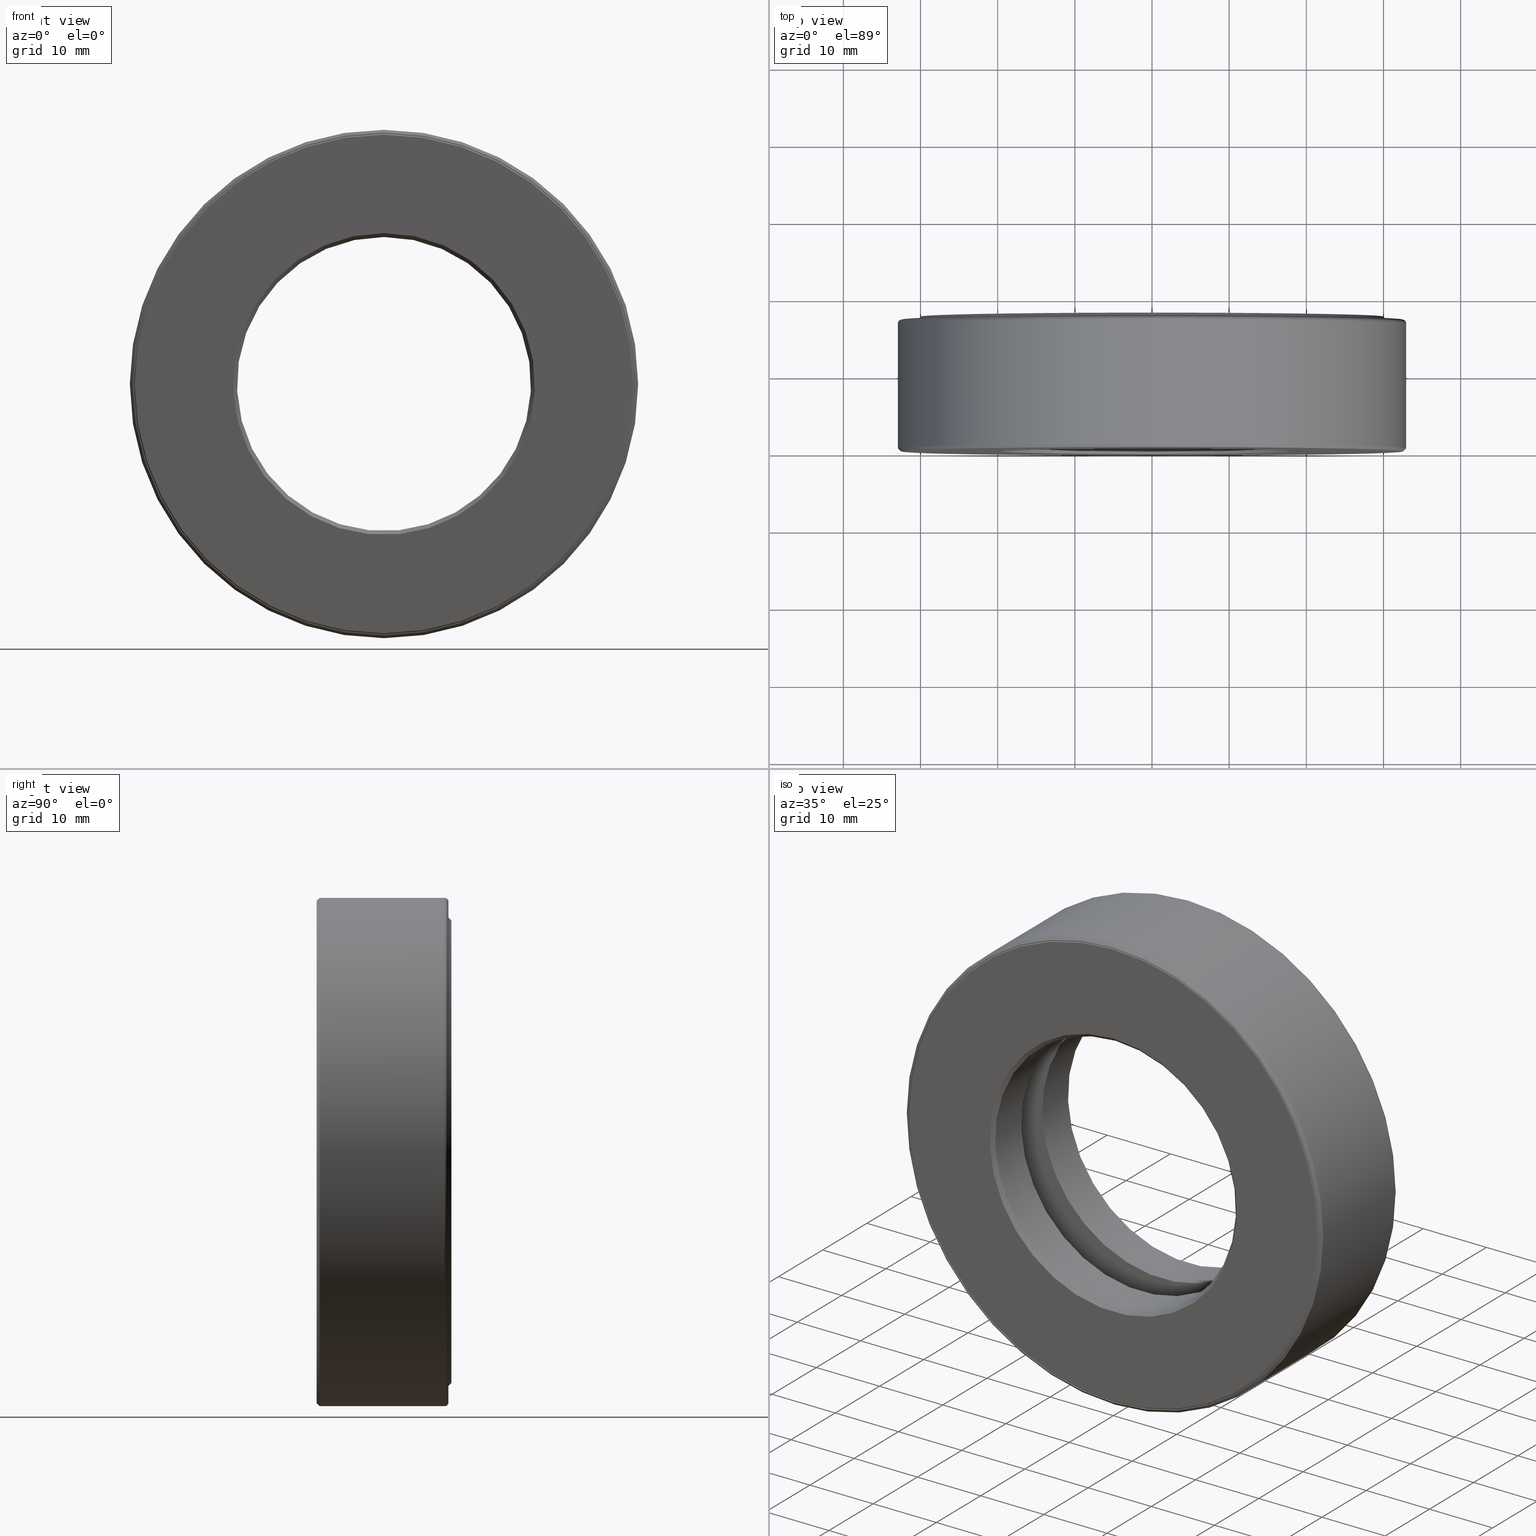
[diagram: canonical four-view strip — front | top / right | iso, engineering-drawing reading convention]
A machine part, canonical four-view strip (front | top / right | iso — engineering-drawing reading convention). The complete STEP part file that produces these views, byte-faithful:
ISO-10303-21;
HEADER;
FILE_DESCRIPTION (( 'STEP AP203' ),
    '1' );
FILE_NAME ('T-100-21.step',
    '2016-06-29T18:27:24',
    ( '' ),
    ( '' ),
    'SwSTEP 2.0',
    'SolidWorks 2016',
    '' );
FILE_SCHEMA (( 'CONFIG_CONTROL_DESIGN' ));
ENDSEC;

DATA;
#1 = DIRECTION ( 'NONE',  ( 0.0000000000000000000, 0.0000000000000000000, 1.000000000000000000 ) ) ;
#2 = EDGE_LOOP ( 'NONE', ( #406 ) ) ;
#3 = PERSON_AND_ORGANIZATION ( #119, #268 ) ;
#4 = CARTESIAN_POINT ( 'NONE',  ( 0.0000000000000000000, 0.6724999999999998800, 0.0000000000000000000 ) ) ;
#5 = PERSON_AND_ORGANIZATION_ROLE ( 'design_owner' ) ;
#6 = DIRECTION ( 'NONE',  ( -0.0000000000000000000, 1.000000000000000000, -0.0000000000000000000 ) ) ;
#7 = ORIENTED_EDGE ( 'NONE', *, *, #381, .T. ) ;
#8 = EDGE_CURVE ( 'NONE', #547, #547, #39, .T. ) ;
#9 = EDGE_LOOP ( 'NONE', ( #101 ) ) ;
#10 = CALENDAR_DATE ( 2016, 29, 6 ) ;
#11 = DIRECTION ( 'NONE',  ( 0.0000000000000000000, -1.000000000000000000, 0.0000000000000000000 ) ) ;
#12 = PERSON_AND_ORGANIZATION_ROLE ( 'classification_officer' ) ;
#13 = MANIFOLD_SOLID_BREP ( 'Revolve3', #201 ) ;
#14 = DIRECTION ( 'NONE',  ( 0.0000000000000000000, 0.0000000000000000000, 1.000000000000000000 ) ) ;
#15 = ORIENTED_EDGE ( 'NONE', *, *, #381, .F. ) ;
#16 = EDGE_LOOP ( 'NONE', ( #591 ) ) ;
#17 = VERTEX_POINT ( 'NONE', #168 ) ;
#18 = DIRECTION ( 'NONE',  ( -0.0000000000000000000, 1.000000000000000000, -0.0000000000000000000 ) ) ;
#19 = CIRCLE ( 'NONE', #76, 1.216875000000000200 ) ;
#20 = CIRCLE ( 'NONE', #64, 1.276875000000000000 ) ;
#21 = APPROVAL ( #465, 'UNSPECIFIED' ) ;
#22 = PLANE ( 'NONE',  #510 ) ;
#23 = DIMENSIONAL_EXPONENTS ( 1.000000000000000000, 0.0000000000000000000, 0.0000000000000000000, 0.0000000000000000000, 0.0000000000000000000, 0.0000000000000000000, 0.0000000000000000000 ) ;
#24 = CLOSED_SHELL ( 'NONE', ( #295 ) ) ;
#25 = CARTESIAN_POINT ( 'NONE',  ( 0.0000000000000000000, 0.3437500000000000000, 0.0000000000000000000 ) ) ;
#26 = APPROVAL_PERSON_ORGANIZATION ( #441, #21, #379 ) ;
#27 = AXIS2_PLACEMENT_3D ( 'NONE', #599, #43, #224 ) ;
#28 = DIRECTION ( 'NONE',  ( -0.0000000000000000000, 1.000000000000000000, -0.0000000000000000000 ) ) ;
#29 = EDGE_LOOP ( 'NONE', ( #550 ) ) ;
#30 = FACE_BOUND ( 'NONE', #2, .T. ) ;
#31 = PERSON_AND_ORGANIZATION ( #119, #268 ) ;
#32 = CARTESIAN_POINT ( 'NONE',  ( 0.0000000000000000000, 0.4375000000000000000, 0.0000000000000000000 ) ) ;
#33 = ADVANCED_FACE ( 'NONE', ( #548, #148 ), #218, .F. ) ;
#34 = AXIS2_PLACEMENT_3D ( 'NONE', #277, #230, #469 ) ;
#35 = ADVANCED_FACE ( 'NONE', ( #520, #241 ), #341, .F. ) ;
#36 = MANIFOLD_SOLID_BREP ( 'BALLS[1]', #292 ) ;
#37 = ORIENTED_EDGE ( 'NONE', *, *, #423, .T. ) ;
#38 = VERTEX_POINT ( 'NONE', #463 ) ;
#39 = CIRCLE ( 'NONE', #539, 0.7500000000000002200 ) ;
#40 = CARTESIAN_POINT ( 'NONE',  ( 0.0000000000000000000, -6.936332796413168700E-017, 0.0000000000000000000 ) ) ;
#41 = PERSON_AND_ORGANIZATION ( #119, #268 ) ;
#42 = AXIS2_PLACEMENT_3D ( 'NONE', #236, #6, #14 ) ;
#43 = DIRECTION ( 'NONE',  ( 0.0000000000000000000, -1.000000000000000000, 0.0000000000000000000 ) ) ;
#44 = FACE_OUTER_BOUND ( 'NONE', #359, .T. ) ;
#45 = FACE_BOUND ( 'NONE', #373, .T. ) ;
#46 = AXIS2_PLACEMENT_3D ( 'NONE', #560, #282, #103 ) ;
#47 = CARTESIAN_POINT ( 'NONE',  ( 0.0000000000000000000, 0.2499999999999998300, 0.0000000000000000000 ) ) ;
#48 = DIRECTION ( 'NONE',  ( 0.0000000000000000000, 0.0000000000000000000, 1.000000000000000000 ) ) ;
#49 = CARTESIAN_POINT ( 'NONE',  ( 0.0000000000000000000, 0.2499999999999999700, 0.0000000000000000000 ) ) ;
#50 = EDGE_LOOP ( 'NONE', ( #146 ) ) ;
#51 = VERTEX_POINT ( 'NONE', #90 ) ;
#52 = EDGE_LOOP ( 'NONE', ( #408 ) ) ;
#53 = PLANE ( 'NONE',  #567 ) ;
#54 = CC_DESIGN_APPROVAL ( #21, ( #590 ) ) ;
#55 = CARTESIAN_POINT ( 'NONE',  ( 0.0000000000000000000, 0.4375000000000000000, 0.0000000000000000000 ) ) ;
#56 =( NAMED_UNIT ( * ) PLANE_ANGLE_UNIT ( ) SI_UNIT ( $, .RADIAN. ) );
#57 = DIRECTION ( 'NONE',  ( -1.000000000000000000, 0.0000000000000000000, 6.982962677686269100E-015 ) ) ;
#58 = DATE_TIME_ROLE ( 'classification_date' ) ;
#59 = AXIS2_PLACEMENT_3D ( 'NONE', #504, #365, #220 ) ;
#60 = ORIENTED_EDGE ( 'NONE', *, *, #549, .T. ) ;
#61 = DIRECTION ( 'NONE',  ( -0.0000000000000000000, 1.000000000000000000, -0.0000000000000000000 ) ) ;
#62 = DIRECTION ( 'NONE',  ( 0.0000000000000000000, 0.0000000000000000000, 1.000000000000000000 ) ) ;
#63 =( NAMED_UNIT ( * ) SI_UNIT ( $, .STERADIAN. ) SOLID_ANGLE_UNIT ( ) );
#64 = AXIS2_PLACEMENT_3D ( 'NONE', #578, #545, #209 ) ;
#65 = EDGE_LOOP ( 'NONE', ( #594 ) ) ;
#66 = CC_DESIGN_PERSON_AND_ORGANIZATION_ASSIGNMENT ( #141, #289, ( #544 ) ) ;
#67 = FACE_OUTER_BOUND ( 'NONE', #596, .T. ) ;
#68 = VERTEX_POINT ( 'NONE', #278 ) ;
#69 = ADVANCED_FACE ( 'NONE', ( #592, #327 ), #269, .F. ) ;
#70 = ORIENTED_EDGE ( 'NONE', *, *, #8, .F. ) ;
#71 = DIRECTION ( 'NONE',  ( 0.0000000000000000000, 0.0000000000000000000, -1.000000000000000000 ) ) ;
#72 = EDGE_LOOP ( 'NONE', ( #440 ) ) ;
#73 = APPROVAL ( #569, 'UNSPECIFIED' ) ;
#74 = CARTESIAN_POINT ( 'NONE',  ( 0.0000000000000000000, 0.0000000000000000000, 0.0000000000000000000 ) ) ;
#75 = ADVANCED_FACE ( 'NONE', ( #360, #461 ), #140, .F. ) ;
#76 = AXIS2_PLACEMENT_3D ( 'NONE', #4, #97, #145 ) ;
#77 = DIRECTION ( 'NONE',  ( -0.0000000000000000000, 1.000000000000000000, -0.0000000000000000000 ) ) ;
#78 = ADVANCED_FACE ( 'NONE', ( #165, #217 ), #323, .T. ) ;
#79 = EDGE_LOOP ( 'NONE', ( #7 ) ) ;
#80 = CIRCLE ( 'NONE', #488, 0.7500000000000001100 ) ;
#81 = ORIENTED_EDGE ( 'NONE', *, *, #357, .T. ) ;
#82 = LENGTH_MEASURE_WITH_UNIT ( LENGTH_MEASURE( 0.02539999999999999900 ), #332 );
#83 = DATE_AND_TIME ( #507, #584 ) ;
#84 = DIRECTION ( 'NONE',  ( -0.0000000000000000000, 1.000000000000000000, -0.0000000000000000000 ) ) ;
#85 = CARTESIAN_POINT ( 'NONE',  ( 0.0000000000000000000, 0.02000000000000046900, 0.0000000000000000000 ) ) ;
#86 = CIRCLE ( 'NONE', #42, 0.7700000000000003500 ) ;
#87 = AXIS2_PLACEMENT_3D ( 'NONE', #270, #89, #417 ) ;
#88 = CARTESIAN_POINT ( 'NONE',  ( 0.0000000000000000000, 0.6524999999999997500, 1.296875000000000000 ) ) ;
#89 = DIRECTION ( 'NONE',  ( 1.000000000000000000, 0.0000000000000000000, -1.047444401652940600E-014 ) ) ;
#90 = CARTESIAN_POINT ( 'NONE',  ( 0.0000000000000000000, 0.6724999999999998800, 1.276875000000000000 ) ) ;
#91 = AXIS2_PLACEMENT_3D ( 'NONE', #580, #122, #402 ) ;
#92 = DIRECTION ( 'NONE',  ( 0.0000000000000000000, 0.0000000000000000000, 1.000000000000000000 ) ) ;
#93 = CLOSED_SHELL ( 'NONE', ( #309, #532, #78, #345, #167, #123, #495, #302 ) ) ;
#94 = FACE_BOUND ( 'NONE', #369, .T. ) ;
#95 = PLANE ( 'NONE',  #34 ) ;
#96 = CC_DESIGN_DATE_AND_TIME_ASSIGNMENT ( #565, #155, ( #544 ) ) ;
#97 = DIRECTION ( 'NONE',  ( -0.0000000000000000000, 1.000000000000000000, -0.0000000000000000000 ) ) ;
#98 = EDGE_CURVE ( 'NONE', #519, #519, #534, .T. ) ;
#99 = CARTESIAN_POINT ( 'NONE',  ( 0.0000000000000000000, 0.0000000000000000000, 0.0000000000000000000 ) ) ;
#100 = DIRECTION ( 'NONE',  ( 0.0000000000000000000, 0.0000000000000000000, 1.000000000000000000 ) ) ;
#101 = ORIENTED_EDGE ( 'NONE', *, *, #357, .F. ) ;
#102 = CIRCLE ( 'NONE', #91, 0.9866250000000003100 ) ;
#103 = DIRECTION ( 'NONE',  ( 0.0000000000000000000, 0.0000000000000000000, 1.000000000000000000 ) ) ;
#104 = APPROVAL ( #335, 'UNSPECIFIED' ) ;
#105 = ORIENTED_EDGE ( 'NONE', *, *, #235, .F. ) ;
#106 = CARTESIAN_POINT ( 'NONE',  ( 0.0000000000000000000, 0.6524999999999997500, 0.0000000000000000000 ) ) ;
#107 = EDGE_LOOP ( 'NONE', ( #553 ) ) ;
#108 = CARTESIAN_POINT ( 'NONE',  ( 3.881217943291499200E-015, 0.3437500000000000000, 1.111625000000000100 ) ) ;
#109 = MECHANICAL_CONTEXT ( 'NONE', #237, 'mechanical' ) ;
#110 = AXIS2_PLACEMENT_3D ( 'NONE', #40, #554, #92 ) ;
#111 = CIRCLE ( 'NONE', #150, 1.181875000000000000 ) ;
#112 = DIRECTION ( 'NONE',  ( -1.000000000000000000, 0.0000000000000000000, 3.491481338843134500E-015 ) ) ;
#113 = FACE_OUTER_BOUND ( 'NONE', #275, .T. ) ;
#114 = VERTEX_POINT ( 'NONE', #380 ) ;
#115 = DIRECTION ( 'NONE',  ( 0.0000000000000000000, 0.0000000000000000000, 1.000000000000000000 ) ) ;
#116 = CARTESIAN_POINT ( 'NONE',  ( 0.0000000000000000000, 0.01499999999999984000, 1.296875000000000000 ) ) ;
#117 = EDGE_LOOP ( 'NONE', ( #387 ) ) ;
#118 = CC_DESIGN_PERSON_AND_ORGANIZATION_ASSIGNMENT ( #3, #435, ( #590 ) ) ;
#119 = PERSON ( 'UNSPECIFIED', 'UNSPECIFIED', 'UNSPECIFIED', ('UNSPECIFIED'), ('UNSPECIFIED'), ('UNSPECIFIED') ) ;
#120 = CIRCLE ( 'NONE', #331, 0.7500000000000002200 ) ;
#121 = FACE_OUTER_BOUND ( 'NONE', #377, .T. ) ;
#122 = DIRECTION ( 'NONE',  ( -0.0000000000000000000, 1.000000000000000000, -0.0000000000000000000 ) ) ;
#123 = ADVANCED_FACE ( 'NONE', ( #559, #94 ), #320, .T. ) ;
#124 = CLOSED_SHELL ( 'NONE', ( #212, #306, #171, #583, #298, #577, #491, #586, #546, #69, #445, #211, #405, #75, #35, #33 ) ) ;
#125 = EDGE_LOOP ( 'NONE', ( #505 ) ) ;
#126 = PLANE ( 'NONE',  #409 ) ;
#127 = CARTESIAN_POINT ( 'NONE',  ( 0.0000000000000000000, 0.004999999999999950700, 1.276875000000000000 ) ) ;
#128 = CIRCLE ( 'NONE', #233, 1.269875000000000100 ) ;
#129 = CIRCLE ( 'NONE', #305, 0.9866250000000003100 ) ;
#130 = CC_DESIGN_SECURITY_CLASSIFICATION ( #333, ( #590 ) ) ;
#131 = DATE_AND_TIME ( #576, #170 ) ;
#132 = EDGE_LOOP ( 'NONE', ( #389 ) ) ;
#133 = FACE_OUTER_BOUND ( 'NONE', #266, .T. ) ;
#134 = CYLINDRICAL_SURFACE ( 'NONE', #481, 1.276875000000000000 ) ;
#135 = AXIS2_PLACEMENT_3D ( 'NONE', #257, #312, #322 ) ;
#136 = CARTESIAN_POINT ( 'NONE',  ( 0.0000000000000000000, 0.0000000000000000000, 0.0000000000000000000 ) ) ;
#137 = CC_DESIGN_APPROVAL ( #104, ( #333 ) ) ;
#138 = DIRECTION ( 'NONE',  ( -0.0000000000000000000, 1.000000000000000000, 0.0000000000000000000 ) ) ;
#139 = ORIENTED_EDGE ( 'NONE', *, *, #219, .F. ) ;
#140 = CONICAL_SURFACE ( 'NONE', #418, 0.7500000000000001100, 0.7853981633974415100 ) ;
#141 = PERSON_AND_ORGANIZATION ( #119, #268 ) ;
#142 = AXIS2_PLACEMENT_3D ( 'NONE', #193, #151, #271 ) ;
#143 = VERTEX_POINT ( 'NONE', #127 ) ;
#144 = COORDINATED_UNIVERSAL_TIME_OFFSET ( 5, 0, .BEHIND. ) ;
#145 = DIRECTION ( 'NONE',  ( 0.0000000000000000000, 0.0000000000000000000, 1.000000000000000000 ) ) ;
#146 = ORIENTED_EDGE ( 'NONE', *, *, #391, .T. ) ;
#147 = VERTEX_POINT ( 'NONE', #485 ) ;
#148 = FACE_OUTER_BOUND ( 'NONE', #425, .T. ) ;
#149 = DIRECTION ( 'NONE',  ( 6.982962677686269100E-015, -0.0000000000000000000, 1.000000000000000000 ) ) ;
#150 = AXIS2_PLACEMENT_3D ( 'NONE', #339, #242, #342 ) ;
#151 = DIRECTION ( 'NONE',  ( 0.0000000000000000000, 0.0000000000000000000, -1.000000000000000000 ) ) ;
#152 = SECURITY_CLASSIFICATION_LEVEL ( 'unclassified' ) ;
#153 = EDGE_LOOP ( 'NONE', ( #350 ) ) ;
#154 = DIRECTION ( 'NONE',  ( 0.0000000000000000000, -0.0000000000000000000, -1.000000000000000000 ) ) ;
#155 = DATE_TIME_ROLE ( 'creation_date' ) ;
#156 = CARTESIAN_POINT ( 'NONE',  ( 0.0000000000000000000, 0.5995000000000001400, 0.0000000000000000000 ) ) ;
#157 = ORIENTED_EDGE ( 'NONE', *, *, #506, .F. ) ;
#158 = DIRECTION ( 'NONE',  ( 0.0000000000000000000, 0.0000000000000000000, 1.000000000000000000 ) ) ;
#159 = DIRECTION ( 'NONE',  ( -0.0000000000000000000, 1.000000000000000000, -0.0000000000000000000 ) ) ;
#160 = ORIENTED_EDGE ( 'NONE', *, *, #192, .T. ) ;
#161 = DIRECTION ( 'NONE',  ( 0.0000000000000000000, 0.0000000000000000000, 1.000000000000000000 ) ) ;
#162 = PRODUCT_RELATED_PRODUCT_CATEGORY ( 'detail', '', ( #229 ) ) ;
#163 = ORIENTED_EDGE ( 'NONE', *, *, #192, .F. ) ;
#164 = PLANE ( 'NONE',  #444 ) ;
#165 = FACE_BOUND ( 'NONE', #223, .T. ) ;
#166 = FACE_BOUND ( 'NONE', #117, .T. ) ;
#167 = ADVANCED_FACE ( 'NONE', ( #294, #486 ), #393, .F. ) ;
#168 = CARTESIAN_POINT ( 'NONE',  ( 0.0000000000000000000, 0.6524999999999997500, 1.276875000000000000 ) ) ;
#169 = AXIS2_PLACEMENT_3D ( 'NONE', #324, #138, #454 ) ;
#170 = LOCAL_TIME ( 14, 27, 24.00000000000000000, #516 ) ;
#171 = ADVANCED_FACE ( 'NONE', ( #502, #203 ), #134, .F. ) ;
#172 = DIRECTION ( 'NONE',  ( -0.0000000000000000000, 1.000000000000000000, -0.0000000000000000000 ) ) ;
#173 = AXIS2_PLACEMENT_3D ( 'NONE', #330, #195, #1 ) ;
#174 = TOROIDAL_SURFACE ( 'NONE', #343, 1.111625000000000100, 0.1562499999999999200 ) ;
#175 = ADVANCED_FACE ( 'NONE', ( ), #260, .T. ) ;
#176 = FACE_OUTER_BOUND ( 'NONE', #153, .T. ) ;
#177 = CARTESIAN_POINT ( 'NONE',  ( 0.0000000000000000000, 0.6674999999999995400, 0.7500000000000002200 ) ) ;
#178 = CARTESIAN_POINT ( 'NONE',  ( 0.0000000000000000000, 0.6524999999999997500, 0.0000000000000000000 ) ) ;
#179 = ORIENTED_EDGE ( 'NONE', *, *, #555, .T. ) ;
#180 = ORIENTED_EDGE ( 'NONE', *, *, #317, .T. ) ;
#181 = CARTESIAN_POINT ( 'NONE',  ( 0.0000000000000000000, -7.043045608665678100E-017, 1.281875000000000100 ) ) ;
#182 = AXIS2_PLACEMENT_3D ( 'NONE', #106, #61, #478 ) ;
#183 = EDGE_LOOP ( 'NONE', ( #244 ) ) ;
#184 = AXIS2_PLACEMENT_3D ( 'NONE', #47, #371, #413 ) ;
#185 = FACE_BOUND ( 'NONE', #363, .T. ) ;
#186 = CARTESIAN_POINT ( 'NONE',  ( 0.0000000000000000000, -6.936332796413168700E-017, 1.271874999999999900 ) ) ;
#187 = CC_DESIGN_PERSON_AND_ORGANIZATION_ASSIGNMENT ( #31, #5, ( #229 ) ) ;
#188 = EDGE_LOOP ( 'NONE', ( #364 ) ) ;
#189 = CYLINDRICAL_SURFACE ( 'NONE', #321, 1.269875000000000100 ) ;
#190 = CARTESIAN_POINT ( 'NONE',  ( 0.0000000000000000000, 0.5995000000000001400, 1.269874999999999900 ) ) ;
#191 = APPROVAL_PERSON_ORGANIZATION ( #41, #104, #523 ) ;
#192 = EDGE_CURVE ( 'NONE', #558, #558, #573, .T. ) ;
#193 = CARTESIAN_POINT ( 'NONE',  ( -1.111625000000000100, 0.3437500000000000000, 0.0000000000000000000 ) ) ;
#194 = EDGE_LOOP ( 'NONE', ( #518 ) ) ;
#195 = DIRECTION ( 'NONE',  ( -0.0000000000000000000, 1.000000000000000000, -0.0000000000000000000 ) ) ;
#196 = APPROVAL_PERSON_ORGANIZATION ( #328, #73, #427 ) ;
#197 = AXIS2_PLACEMENT_3D ( 'NONE', #200, #18, #398 ) ;
#198 = DIRECTION ( 'NONE',  ( 0.0000000000000000000, 0.0000000000000000000, 1.000000000000000000 ) ) ;
#199 = CARTESIAN_POINT ( 'NONE',  ( 0.0000000000000000000, 0.0000000000000000000, 0.0000000000000000000 ) ) ;
#200 = CARTESIAN_POINT ( 'NONE',  ( 0.0000000000000000000, 0.6524999999999997500, 0.0000000000000000000 ) ) ;
#201 = CLOSED_SHELL ( 'NONE', ( #248 ) ) ;
#202 = VERTEX_POINT ( 'NONE', #394 ) ;
#203 = FACE_OUTER_BOUND ( 'NONE', #336, .T. ) ;
#204 = LOCAL_TIME ( 14, 27, 24.00000000000000000, #304 ) ;
#205 = DIRECTION ( 'NONE',  ( -0.0000000000000000000, 1.000000000000000000, -0.0000000000000000000 ) ) ;
#206 = AXIS2_PLACEMENT_3D ( 'NONE', #299, #28, #442 ) ;
#207 = ORIENTED_EDGE ( 'NONE', *, *, #457, .F. ) ;
#208 = CONICAL_SURFACE ( 'NONE', #397, 1.181875000000000000, 0.7853981633974482800 ) ;
#209 = DIRECTION ( 'NONE',  ( 0.0000000000000000000, 0.0000000000000000000, 1.000000000000000000 ) ) ;
#210 = EDGE_CURVE ( 'NONE', #420, #420, #129, .T. ) ;
#211 = ADVANCED_FACE ( 'NONE', ( #449, #30 ), #438, .T. ) ;
#212 = ADVANCED_FACE ( 'NONE', ( #347, #401 ), #232, .F. ) ;
#213 = DIRECTION ( 'NONE',  ( 0.0000000000000000000, 0.0000000000000000000, 1.000000000000000000 ) ) ;
#214 = CC_DESIGN_APPROVAL ( #73, ( #544 ) ) ;
#215 = EDGE_LOOP ( 'NONE', ( #157 ) ) ;
#216 = FACE_OUTER_BOUND ( 'NONE', #509, .T. ) ;
#217 = FACE_OUTER_BOUND ( 'NONE', #29, .T. ) ;
#218 = PLANE ( 'NONE',  #135 ) ;
#219 = EDGE_CURVE ( 'NONE', #448, #448, #511, .T. ) ;
#220 = DIRECTION ( 'NONE',  ( 0.0000000000000000000, 0.0000000000000000000, 1.000000000000000000 ) ) ;
#221 = CLOSED_SHELL ( 'NONE', ( #175 ) ) ;
#222 = CARTESIAN_POINT ( 'NONE',  ( 0.0000000000000000000, 0.6875000000000000000, 0.0000000000000000000 ) ) ;
#223 = EDGE_LOOP ( 'NONE', ( #515 ) ) ;
#224 = DIRECTION ( 'NONE',  ( 0.0000000000000000000, -0.0000000000000000000, -1.000000000000000000 ) ) ;
#225 = APPROVAL_DATE_TIME ( #497, #104 ) ;
#226 = DIRECTION ( 'NONE',  ( -0.0000000000000000000, 1.000000000000000000, -0.0000000000000000000 ) ) ;
#227 = FACE_OUTER_BOUND ( 'NONE', #238, .T. ) ;
#228 = APPROVAL_DATE_TIME ( #450, #73 ) ;
#229 = PRODUCT ( 'T-100-21', 'T-100-21', '', ( #109 ) ) ;
#230 = DIRECTION ( 'NONE',  ( 0.0000000000000000000, -1.000000000000000000, 0.0000000000000000000 ) ) ;
#231 = APPLICATION_PROTOCOL_DEFINITION ( 'international standard', 'config_control_design', 1994, #566 ) ;
#232 = TOROIDAL_SURFACE ( 'NONE', #479, 1.111625000000000100, 0.1562500000000000000 ) ;
#233 = AXIS2_PLACEMENT_3D ( 'NONE', #568, #434, #572 ) ;
#234 = CARTESIAN_POINT ( 'NONE',  ( 0.0000000000000000000, 0.4375000000000000000, 0.0000000000000000000 ) ) ;
#235 = EDGE_CURVE ( 'NONE', #460, #460, #19, .T. ) ;
#236 = CARTESIAN_POINT ( 'NONE',  ( 0.0000000000000000000, 0.6875000000000000000, 0.0000000000000000000 ) ) ;
#237 = APPLICATION_CONTEXT ( 'configuration controlled 3d designs of mechanical parts and assemblies' ) ;
#238 = EDGE_LOOP ( 'NONE', ( #399 ) ) ;
#239 = FACE_OUTER_BOUND ( 'NONE', #496, .T. ) ;
#240 = DIRECTION ( 'NONE',  ( -0.0000000000000000000, 1.000000000000000000, 0.0000000000000000000 ) ) ;
#241 = FACE_OUTER_BOUND ( 'NONE', #419, .T. ) ;
#242 = DIRECTION ( 'NONE',  ( -0.0000000000000000000, 1.000000000000000000, -0.0000000000000000000 ) ) ;
#243 = DIRECTION ( 'NONE',  ( 0.0000000000000000000, 0.0000000000000000000, 1.000000000000000000 ) ) ;
#244 = ORIENTED_EDGE ( 'NONE', *, *, #219, .T. ) ;
#245 = FACE_BOUND ( 'NONE', #183, .T. ) ;
#246 = FACE_OUTER_BOUND ( 'NONE', #9, .T. ) ;
#247 = DIRECTION ( 'NONE',  ( -0.0000000000000000000, 1.000000000000000000, -0.0000000000000000000 ) ) ;
#248 = ADVANCED_FACE ( 'NONE', ( ), #493, .T. ) ;
#249 = DIRECTION ( 'NONE',  ( -0.0000000000000000000, 1.000000000000000000, -0.0000000000000000000 ) ) ;
#250 = CARTESIAN_POINT ( 'NONE',  ( 0.0000000000000000000, 0.4375000000000000000, 0.9866250000000003100 ) ) ;
#251 = AXIS2_PLACEMENT_3D ( 'NONE', #536, #159, #337 ) ;
#252 = CARTESIAN_POINT ( 'NONE',  ( 0.0000000000000000000, 0.2499999999999998300, 1.236625000000000100 ) ) ;
#253 = EDGE_LOOP ( 'NONE', ( #263 ) ) ;
#254 = CIRCLE ( 'NONE', #300, 1.276875000000000000 ) ;
#255 = DIRECTION ( 'NONE',  ( 0.0000000000000000000, 0.0000000000000000000, 1.000000000000000000 ) ) ;
#256 = APPROVAL_DATE_TIME ( #83, #21 ) ;
#257 = CARTESIAN_POINT ( 'NONE',  ( -7.215657669477718100E-017, 0.2499999999999999200, 0.0000000000000000000 ) ) ;
#258 = EDGE_LOOP ( 'NONE', ( #163 ) ) ;
#259 = VERTEX_POINT ( 'NONE', #538 ) ;
#260 = SPHERICAL_SURFACE ( 'NONE', #87, 0.1562500000000000000 ) ;
#261 = CIRCLE ( 'NONE', #352, 1.271874999999999900 ) ;
#262 = CC_DESIGN_PERSON_AND_ORGANIZATION_ASSIGNMENT ( #456, #474, ( #590 ) ) ;
#263 = ORIENTED_EDGE ( 'NONE', *, *, #549, .F. ) ;
#264 = CARTESIAN_POINT ( 'NONE',  ( 0.0000000000000000000, 0.6674999999999995400, 0.0000000000000000000 ) ) ;
#265 = EDGE_CURVE ( 'NONE', #326, #326, #313, .T. ) ;
#266 = EDGE_LOOP ( 'NONE', ( #483 ) ) ;
#267 = CIRCLE ( 'NONE', #173, 1.296875000000000000 ) ;
#268 = ORGANIZATION ( 'UNSPECIFIED', 'UNSPECIFIED', '' ) ;
#269 = PLANE ( 'NONE',  #169 ) ;
#270 = CARTESIAN_POINT ( 'NONE',  ( -1.164365382987449700E-014, 0.3437500000000000000, -1.111625000000000100 ) ) ;
#271 = DIRECTION ( 'NONE',  ( 1.000000000000000000, 0.0000000000000000000, 0.0000000000000000000 ) ) ;
#272 = EDGE_LOOP ( 'NONE', ( #139 ) ) ;
#273 = AXIS2_PLACEMENT_3D ( 'NONE', #529, #205, #115 ) ;
#274 = VERTEX_POINT ( 'NONE', #186 ) ;
#275 = EDGE_LOOP ( 'NONE', ( #70 ) ) ;
#276 = CIRCLE ( 'NONE', #273, 1.276875000000000000 ) ;
#277 = CARTESIAN_POINT ( 'NONE',  ( 0.0000000000000000000, 0.2499999999999998300, 0.0000000000000000000 ) ) ;
#278 = CARTESIAN_POINT ( 'NONE',  ( 0.0000000000000000000, 0.2499999999999998300, 1.276875000000000000 ) ) ;
#279 = EDGE_CURVE ( 'NONE', #202, #202, #120, .T. ) ;
#280 = LOCAL_TIME ( 14, 27, 24.00000000000000000, #602 ) ;
#281 = CARTESIAN_POINT ( 'NONE',  ( 0.0000000000000000000, 0.6524999999999997500, 0.0000000000000000000 ) ) ;
#282 = DIRECTION ( 'NONE',  ( -0.0000000000000000000, 1.000000000000000000, -0.0000000000000000000 ) ) ;
#283 = EDGE_LOOP ( 'NONE', ( #570 ) ) ;
#284 = CIRCLE ( 'NONE', #206, 1.276875000000000000 ) ;
#285 = AXIS2_PLACEMENT_3D ( 'NONE', #464, #372, #374 ) ;
#286 = FACE_OUTER_BOUND ( 'NONE', #392, .T. ) ;
#287 = DIRECTION ( 'NONE',  ( -0.0000000000000000000, 1.000000000000000000, -0.0000000000000000000 ) ) ;
#288 = CARTESIAN_POINT ( 'NONE',  ( -1.470819718715328300E-032, -3.468166398206584400E-017, 0.0000000000000000000 ) ) ;
#289 = PERSON_AND_ORGANIZATION_ROLE ( 'creator' ) ;
#290 = UNCERTAINTY_MEASURE_WITH_UNIT (LENGTH_MEASURE( 1.000000000000000100E-005 ), #338, 'distance_accuracy_value', 'NONE');
#291 = DIRECTION ( 'NONE',  ( 0.0000000000000000000, 0.0000000000000000000, 1.000000000000000000 ) ) ;
#292 = CLOSED_SHELL ( 'NONE', ( #403 ) ) ;
#293 = VERTEX_POINT ( 'NONE', #116 ) ;
#294 = FACE_OUTER_BOUND ( 'NONE', #50, .T. ) ;
#295 = ADVANCED_FACE ( 'NONE', ( ), #476, .T. ) ;
#296 = CARTESIAN_POINT ( 'NONE',  ( 0.0000000000000000000, 0.6875000000000000000, 0.0000000000000000000 ) ) ;
#297 = EDGE_LOOP ( 'NONE', ( #179 ) ) ;
#298 = ADVANCED_FACE ( 'NONE', ( #355, #67 ), #605, .F. ) ;
#299 = CARTESIAN_POINT ( 'NONE',  ( 0.0000000000000000000, 0.2499999999999998300, 0.0000000000000000000 ) ) ;
#300 = AXIS2_PLACEMENT_3D ( 'NONE', #281, #437, #161 ) ;
#301 = CARTESIAN_POINT ( 'NONE',  ( 0.0000000000000000000, 0.4375000000000000000, 0.7500000000000002200 ) ) ;
#302 = ADVANCED_FACE ( 'NONE', ( #286, #176 ), #189, .T. ) ;
#303 = FACE_OUTER_BOUND ( 'NONE', #603, .T. ) ;
#304 = COORDINATED_UNIVERSAL_TIME_OFFSET ( 5, 0, .BEHIND. ) ;
#305 = AXIS2_PLACEMENT_3D ( 'NONE', #458, #226, #551 ) ;
#306 = ADVANCED_FACE ( 'NONE', ( #466, #527 ), #95, .F. ) ;
#307 = DIRECTION ( 'NONE',  ( 0.0000000000000000000, 0.0000000000000000000, 1.000000000000000000 ) ) ;
#308 = CARTESIAN_POINT ( 'NONE',  ( 0.0000000000000000000, 0.4375000000000000000, 1.236625000000000100 ) ) ;
#309 = ADVANCED_FACE ( 'NONE', ( #45, #246 ), #53, .T. ) ;
#310 = ORIENTED_EDGE ( 'NONE', *, *, #423, .F. ) ;
#311 = CYLINDRICAL_SURFACE ( 'NONE', #598, 1.296875000000000000 ) ;
#312 = DIRECTION ( 'NONE',  ( 0.0000000000000000000, -1.000000000000000000, 0.0000000000000000000 ) ) ;
#313 = CIRCLE ( 'NONE', #521, 1.236625000000000100 ) ;
#314 = VERTEX_POINT ( 'NONE', #472 ) ;
#315 = MANIFOLD_SOLID_BREP ( 'Revolve2[2]', #93 ) ;
#316 = AXIS2_PLACEMENT_3D ( 'NONE', #199, #432, #158 ) ;
#317 = EDGE_CURVE ( 'NONE', #293, #293, #267, .T. ) ;
#318 = DIRECTION ( 'NONE',  ( 0.0000000000000000000, 0.0000000000000000000, 1.000000000000000000 ) ) ;
#319 = CIRCLE ( 'NONE', #439, 1.281875000000000100 ) ;
#320 = PLANE ( 'NONE',  #400 ) ;
#321 = AXIS2_PLACEMENT_3D ( 'NONE', #426, #422, #517 ) ;
#322 = DIRECTION ( 'NONE',  ( 0.0000000000000000000, -0.0000000000000000000, -1.000000000000000000 ) ) ;
#323 = PLANE ( 'NONE',  #27 ) ;
#324 = CARTESIAN_POINT ( 'NONE',  ( -1.538755723098135700E-032, -7.007939281880947700E-017, 0.0000000000000000000 ) ) ;
#325 = EDGE_LOOP ( 'NONE', ( #207 ) ) ;
#326 = VERTEX_POINT ( 'NONE', #308 ) ;
#327 = FACE_BOUND ( 'NONE', #107, .T. ) ;
#328 = PERSON_AND_ORGANIZATION ( #119, #268 ) ;
#329 = DIRECTION ( 'NONE',  ( 0.0000000000000000000, 0.0000000000000000000, 1.000000000000000000 ) ) ;
#330 = CARTESIAN_POINT ( 'NONE',  ( 0.0000000000000000000, 0.01499999999999984000, 0.0000000000000000000 ) ) ;
#331 = AXIS2_PLACEMENT_3D ( 'NONE', #49, #383, #562 ) ;
#332 =( LENGTH_UNIT ( ) NAMED_UNIT ( * ) SI_UNIT ( $, .METRE. ) );
#333 = SECURITY_CLASSIFICATION ( '', '', #152 ) ;
#334 = ORIENTED_EDGE ( 'NONE', *, *, #265, .T. ) ;
#335 = APPROVAL_STATUS ( 'not_yet_approved' ) ;
#336 = EDGE_LOOP ( 'NONE', ( #582 ) ) ;
#337 = DIRECTION ( 'NONE',  ( 0.0000000000000000000, 0.0000000000000000000, 1.000000000000000000 ) ) ;
#338 =( CONVERSION_BASED_UNIT ( 'INCH', #82 ) LENGTH_UNIT ( ) NAMED_UNIT ( #23 ) );
#339 = CARTESIAN_POINT ( 'NONE',  ( 0.0000000000000000000, 0.6875000000000000000, 0.0000000000000000000 ) ) ;
#340 = FACE_OUTER_BOUND ( 'NONE', #600, .T. ) ;
#341 = CYLINDRICAL_SURFACE ( 'NONE', #564, 0.7500000000000002200 ) ;
#342 = DIRECTION ( 'NONE',  ( 0.0000000000000000000, 0.0000000000000000000, 1.000000000000000000 ) ) ;
#343 = AXIS2_PLACEMENT_3D ( 'NONE', #25, #585, #307 ) ;
#344 = DIRECTION ( 'NONE',  ( 0.0000000000000000000, 0.0000000000000000000, 1.000000000000000000 ) ) ;
#345 = ADVANCED_FACE ( 'NONE', ( #227, #113 ), #421, .F. ) ;
#346 = CARTESIAN_POINT ( 'NONE',  ( 0.0000000000000000000, 0.6724999999999998800, 0.0000000000000000000 ) ) ;
#347 = FACE_OUTER_BOUND ( 'NONE', #215, .T. ) ;
#348 = TOROIDAL_SURFACE ( 'NONE', #197, 1.276875000000000000, 0.02000000000000005900 ) ;
#349 = DIRECTION ( 'NONE',  ( 0.0000000000000000000, 0.0000000000000000000, 1.000000000000000000 ) ) ;
#350 = ORIENTED_EDGE ( 'NONE', *, *, #451, .F. ) ;
#351 = ORIENTED_EDGE ( 'NONE', *, *, #279, .T. ) ;
#352 = AXIS2_PLACEMENT_3D ( 'NONE', #473, #574, #198 ) ;
#353 = DIRECTION ( 'NONE',  ( 0.0000000000000000000, 0.0000000000000000000, 1.000000000000000000 ) ) ;
#354 = CIRCLE ( 'NONE', #251, 1.276875000000000000 ) ;
#355 = FACE_OUTER_BOUND ( 'NONE', #272, .T. ) ;
#356 = EDGE_CURVE ( 'NONE', #17, #17, #254, .T. ) ;
#357 = EDGE_CURVE ( 'NONE', #259, #259, #128, .T. ) ;
#358 = CARTESIAN_POINT ( 'NONE',  ( 0.0000000000000000000, 0.6875000000000000000, 1.181875000000000000 ) ) ;
#359 = EDGE_LOOP ( 'NONE', ( #396 ) ) ;
#360 = FACE_OUTER_BOUND ( 'NONE', #65, .T. ) ;
#361 = CIRCLE ( 'NONE', #385, 1.269874999999999900 ) ;
#362 = CC_DESIGN_PERSON_AND_ORGANIZATION_ASSIGNMENT ( #471, #12, ( #333 ) ) ;
#363 = EDGE_LOOP ( 'NONE', ( #15 ) ) ;
#364 = ORIENTED_EDGE ( 'NONE', *, *, #279, .F. ) ;
#365 = DIRECTION ( 'NONE',  ( -0.0000000000000000000, 1.000000000000000000, -0.0000000000000000000 ) ) ;
#366 = EDGE_CURVE ( 'NONE', #147, #147, #354, .T. ) ;
#367 = DIRECTION ( 'NONE',  ( -0.0000000000000000000, 1.000000000000000000, 0.0000000000000000000 ) ) ;
#368 = ADVANCED_BREP_SHAPE_REPRESENTATION ( 'T-100-21', ( #404, #315, #13, #36, #513, #482, #581 ), #462 ) ;
#369 = EDGE_LOOP ( 'NONE', ( #492 ) ) ;
#370 = ORIENTED_EDGE ( 'NONE', *, *, #366, .F. ) ;
#371 = DIRECTION ( 'NONE',  ( -0.0000000000000000000, 1.000000000000000000, -0.0000000000000000000 ) ) ;
#372 = DIRECTION ( 'NONE',  ( -0.0000000000000000000, 1.000000000000000000, -0.0000000000000000000 ) ) ;
#373 = EDGE_LOOP ( 'NONE', ( #334 ) ) ;
#374 = DIRECTION ( 'NONE',  ( 0.0000000000000000000, 0.0000000000000000000, 1.000000000000000000 ) ) ;
#375 = AXIS2_PLACEMENT_3D ( 'NONE', #99, #468, #525 ) ;
#376 = DIRECTION ( 'NONE',  ( 0.0000000000000000000, -1.000000000000000000, 0.0000000000000000000 ) ) ;
#377 = EDGE_LOOP ( 'NONE', ( #563 ) ) ;
#378 = VERTEX_POINT ( 'NONE', #181 ) ;
#379 = APPROVAL_ROLE ( '' ) ;
#380 = CARTESIAN_POINT ( 'NONE',  ( 0.0000000000000000000, 0.02000000000000046900, 0.7500000000000001100 ) ) ;
#381 = EDGE_CURVE ( 'NONE', #407, #407, #111, .T. ) ;
#382 = ORIENTED_EDGE ( 'NONE', *, *, #506, .T. ) ;
#383 = DIRECTION ( 'NONE',  ( -0.0000000000000000000, 1.000000000000000000, -0.0000000000000000000 ) ) ;
#384 = APPLICATION_PROTOCOL_DEFINITION ( 'international standard', 'config_control_design', 1994, #237 ) ;
#385 = AXIS2_PLACEMENT_3D ( 'NONE', #156, #395, #353 ) ;
#386 = CARTESIAN_POINT ( 'NONE',  ( 0.0000000000000000000, 0.0000000000000000000, 0.0000000000000000000 ) ) ;
#387 = ORIENTED_EDGE ( 'NONE', *, *, #447, .T. ) ;
#388 = EDGE_CURVE ( 'NONE', #378, #378, #319, .T. ) ;
#389 = ORIENTED_EDGE ( 'NONE', *, *, #433, .F. ) ;
#390 = CARTESIAN_POINT ( 'NONE',  ( 0.0000000000000000000, -7.043045608665678100E-017, 0.0000000000000000000 ) ) ;
#391 = EDGE_CURVE ( 'NONE', #436, #436, #86, .T. ) ;
#392 = EDGE_LOOP ( 'NONE', ( #81 ) ) ;
#393 = CONICAL_SURFACE ( 'NONE', #59, 0.7500000000000002200, 0.7853981633974415100 ) ;
#394 = CARTESIAN_POINT ( 'NONE',  ( 0.0000000000000000000, 0.2499999999999999700, 0.7500000000000002200 ) ) ;
#395 = DIRECTION ( 'NONE',  ( -0.0000000000000000000, 1.000000000000000000, -0.0000000000000000000 ) ) ;
#396 = ORIENTED_EDGE ( 'NONE', *, *, #412, .T. ) ;
#397 = AXIS2_PLACEMENT_3D ( 'NONE', #296, #11, #71 ) ;
#398 = DIRECTION ( 'NONE',  ( 0.0000000000000000000, 0.0000000000000000000, 1.000000000000000000 ) ) ;
#399 = ORIENTED_EDGE ( 'NONE', *, *, #98, .T. ) ;
#400 = AXIS2_PLACEMENT_3D ( 'NONE', #222, #367, #48 ) ;
#401 = FACE_OUTER_BOUND ( 'NONE', #541, .T. ) ;
#402 = DIRECTION ( 'NONE',  ( 0.0000000000000000000, 0.0000000000000000000, 1.000000000000000000 ) ) ;
#403 = ADVANCED_FACE ( 'NONE', ( ), #588, .T. ) ;
#404 = MANIFOLD_SOLID_BREP ( 'Revolve2[1]', #124 ) ;
#405 = ADVANCED_FACE ( 'NONE', ( #535, #166 ), #164, .F. ) ;
#406 = ORIENTED_EDGE ( 'NONE', *, *, #433, .T. ) ;
#407 = VERTEX_POINT ( 'NONE', #358 ) ;
#408 = ORIENTED_EDGE ( 'NONE', *, *, #98, .F. ) ;
#409 = AXIS2_PLACEMENT_3D ( 'NONE', #346, #443, #543 ) ;
#410 = CARTESIAN_POINT ( 'NONE',  ( 0.0000000000000000000, 0.3437500000000000000, 0.0000000000000000000 ) ) ;
#411 = CALENDAR_DATE ( 2016, 29, 6 ) ;
#412 = EDGE_CURVE ( 'NONE', #571, #571, #579, .T. ) ;
#413 = DIRECTION ( 'NONE',  ( 0.0000000000000000000, 0.0000000000000000000, 1.000000000000000000 ) ) ;
#414 = DESIGN_CONTEXT ( 'detailed design', #566, 'design' ) ;
#415 = DIRECTION ( 'NONE',  ( 0.0000000000000000000, 0.0000000000000000000, 1.000000000000000000 ) ) ;
#416 = AXIS2_PLACEMENT_3D ( 'NONE', #429, #149, #57 ) ;
#417 = DIRECTION ( 'NONE',  ( 1.047444401652940600E-014, 0.0000000000000000000, 1.000000000000000000 ) ) ;
#418 = AXIS2_PLACEMENT_3D ( 'NONE', #85, #556, #459 ) ;
#419 = EDGE_LOOP ( 'NONE', ( #351 ) ) ;
#420 = VERTEX_POINT ( 'NONE', #250 ) ;
#421 = CYLINDRICAL_SURFACE ( 'NONE', #375, 0.7500000000000002200 ) ;
#422 = DIRECTION ( 'NONE',  ( -0.0000000000000000000, 1.000000000000000000, -0.0000000000000000000 ) ) ;
#423 = EDGE_CURVE ( 'NONE', #51, #51, #276, .T. ) ;
#424 = DIRECTION ( 'NONE',  ( -0.0000000000000000000, 1.000000000000000000, -0.0000000000000000000 ) ) ;
#425 = EDGE_LOOP ( 'NONE', ( #382 ) ) ;
#426 = CARTESIAN_POINT ( 'NONE',  ( 0.0000000000000000000, 0.0000000000000000000, 0.0000000000000000000 ) ) ;
#427 = APPROVAL_ROLE ( '' ) ;
#428 = AXIS2_PLACEMENT_3D ( 'NONE', #386, #480, #243 ) ;
#429 = CARTESIAN_POINT ( 'NONE',  ( 1.111625000000000100, 0.3437500000000000000, -7.762435886582998400E-015 ) ) ;
#430 = DIRECTION ( 'NONE',  ( 1.000000000000000000, 0.0000000000000000000, 0.0000000000000000000 ) ) ;
#431 = COORDINATED_UNIVERSAL_TIME_OFFSET ( 5, 0, .BEHIND. ) ;
#432 = DIRECTION ( 'NONE',  ( -0.0000000000000000000, 1.000000000000000000, -0.0000000000000000000 ) ) ;
#433 = EDGE_CURVE ( 'NONE', #274, #274, #261, .T. ) ;
#434 = DIRECTION ( 'NONE',  ( -0.0000000000000000000, 1.000000000000000000, -0.0000000000000000000 ) ) ;
#435 = PERSON_AND_ORGANIZATION_ROLE ( 'design_supplier' ) ;
#436 = VERTEX_POINT ( 'NONE', #499 ) ;
#437 = DIRECTION ( 'NONE',  ( -0.0000000000000000000, 1.000000000000000000, -0.0000000000000000000 ) ) ;
#438 = CONICAL_SURFACE ( 'NONE', #110, 1.271874999999999900, 0.7853981633974547200 ) ;
#439 = AXIS2_PLACEMENT_3D ( 'NONE', #390, #287, #62 ) ;
#440 = ORIENTED_EDGE ( 'NONE', *, *, #457, .T. ) ;
#441 = PERSON_AND_ORGANIZATION ( #119, #268 ) ;
#442 = DIRECTION ( 'NONE',  ( 0.0000000000000000000, 0.0000000000000000000, 1.000000000000000000 ) ) ;
#443 = DIRECTION ( 'NONE',  ( 0.0000000000000000000, -1.000000000000000000, 0.0000000000000000000 ) ) ;
#444 = AXIS2_PLACEMENT_3D ( 'NONE', #288, #240, #291 ) ;
#445 = ADVANCED_FACE ( 'NONE', ( #303, #606 ), #522, .F. ) ;
#446 = CARTESIAN_POINT ( 'NONE',  ( 0.0000000000000000000, 0.02000000000000046900, 0.0000000000000000000 ) ) ;
#447 = EDGE_CURVE ( 'NONE', #38, #38, #542, .T. ) ;
#448 = VERTEX_POINT ( 'NONE', #540 ) ;
#449 = FACE_OUTER_BOUND ( 'NONE', #325, .T. ) ;
#450 = DATE_AND_TIME ( #512, #477 ) ;
#451 = EDGE_CURVE ( 'NONE', #501, #501, #361, .T. ) ;
#452 = EDGE_LOOP ( 'NONE', ( #60 ) ) ;
#453 = FACE_BOUND ( 'NONE', #470, .T. ) ;
#454 = DIRECTION ( 'NONE',  ( 0.0000000000000000000, 0.0000000000000000000, 1.000000000000000000 ) ) ;
#455 = EDGE_LOOP ( 'NONE', ( #500 ) ) ;
#456 = PERSON_AND_ORGANIZATION ( #119, #268 ) ;
#457 = EDGE_CURVE ( 'NONE', #143, #143, #20, .T. ) ;
#458 = CARTESIAN_POINT ( 'NONE',  ( 0.0000000000000000000, 0.4375000000000000000, 0.0000000000000000000 ) ) ;
#459 = DIRECTION ( 'NONE',  ( 0.0000000000000000000, 0.0000000000000000000, -1.000000000000000000 ) ) ;
#460 = VERTEX_POINT ( 'NONE', #490 ) ;
#461 = FACE_BOUND ( 'NONE', #297, .T. ) ;
#462 =( GEOMETRIC_REPRESENTATION_CONTEXT ( 3 ) GLOBAL_UNCERTAINTY_ASSIGNED_CONTEXT ( ( #290 ) ) GLOBAL_UNIT_ASSIGNED_CONTEXT ( ( #338, #56, #63 ) ) REPRESENTATION_CONTEXT ( 'NONE', 'WORKASPACE' ) );
#463 = CARTESIAN_POINT ( 'NONE',  ( 0.0000000000000000000, 0.0000000000000000000, 0.7700000000000002400 ) ) ;
#464 = CARTESIAN_POINT ( 'NONE',  ( 0.0000000000000000000, 0.0000000000000000000, 0.0000000000000000000 ) ) ;
#465 = APPROVAL_STATUS ( 'not_yet_approved' ) ;
#466 = FACE_BOUND ( 'NONE', #258, .T. ) ;
#467 = FACE_OUTER_BOUND ( 'NONE', #455, .T. ) ;
#468 = DIRECTION ( 'NONE',  ( -0.0000000000000000000, 1.000000000000000000, -0.0000000000000000000 ) ) ;
#469 = DIRECTION ( 'NONE',  ( 0.0000000000000000000, -0.0000000000000000000, -1.000000000000000000 ) ) ;
#470 = EDGE_LOOP ( 'NONE', ( #587 ) ) ;
#471 = PERSON_AND_ORGANIZATION ( #119, #268 ) ;
#472 = CARTESIAN_POINT ( 'NONE',  ( 0.0000000000000000000, 0.2499999999999998900, 0.9866250000000003100 ) ) ;
#473 = CARTESIAN_POINT ( 'NONE',  ( 0.0000000000000000000, -6.936332796413168700E-017, 0.0000000000000000000 ) ) ;
#474 = PERSON_AND_ORGANIZATION_ROLE ( 'creator' ) ;
#475 = EDGE_LOOP ( 'NONE', ( #37 ) ) ;
#476 = SPHERICAL_SURFACE ( 'NONE', #416, 0.1562500000000000000 ) ;
#477 = LOCAL_TIME ( 14, 27, 24.00000000000000000, #431 ) ;
#478 = DIRECTION ( 'NONE',  ( 0.0000000000000000000, 0.0000000000000000000, 1.000000000000000000 ) ) ;
#479 = AXIS2_PLACEMENT_3D ( 'NONE', #410, #557, #601 ) ;
#480 = DIRECTION ( 'NONE',  ( -0.0000000000000000000, 1.000000000000000000, -0.0000000000000000000 ) ) ;
#481 = AXIS2_PLACEMENT_3D ( 'NONE', #514, #508, #597 ) ;
#482 = MANIFOLD_SOLID_BREP ( 'BALLS[3]', #221 ) ;
#483 = ORIENTED_EDGE ( 'NONE', *, *, #356, .F. ) ;
#484 = FACE_OUTER_BOUND ( 'NONE', #475, .T. ) ;
#485 = CARTESIAN_POINT ( 'NONE',  ( 0.0000000000000000000, -6.972832955096217300E-017, 1.276875000000000000 ) ) ;
#486 = FACE_BOUND ( 'NONE', #52, .T. ) ;
#487 = CARTESIAN_POINT ( 'NONE',  ( 0.0000000000000000000, -7.043045608665678100E-017, 0.0000000000000000000 ) ) ;
#488 = AXIS2_PLACEMENT_3D ( 'NONE', #446, #172, #344 ) ;
#489 = SHAPE_DEFINITION_REPRESENTATION ( #531, #368 ) ;
#490 = CARTESIAN_POINT ( 'NONE',  ( 0.0000000000000000000, 0.6724999999999998800, 1.216875000000000200 ) ) ;
#491 = ADVANCED_FACE ( 'NONE', ( #239, #44 ), #348, .T. ) ;
#492 = ORIENTED_EDGE ( 'NONE', *, *, #391, .F. ) ;
#493 = SPHERICAL_SURFACE ( 'NONE', #142, 0.1562500000000000000 ) ;
#494 = DIRECTION ( 'NONE',  ( -0.0000000000000000000, 1.000000000000000000, 0.0000000000000000000 ) ) ;
#495 = ADVANCED_FACE ( 'NONE', ( #121, #185 ), #208, .T. ) ;
#496 = EDGE_LOOP ( 'NONE', ( #310 ) ) ;
#497 = DATE_AND_TIME ( #411, #280 ) ;
#498 = DIRECTION ( 'NONE',  ( 0.0000000000000000000, 0.0000000000000000000, 1.000000000000000000 ) ) ;
#499 = CARTESIAN_POINT ( 'NONE',  ( 0.0000000000000000000, 0.6875000000000000000, 0.7700000000000003500 ) ) ;
#500 = ORIENTED_EDGE ( 'NONE', *, *, #265, .F. ) ;
#501 = VERTEX_POINT ( 'NONE', #190 ) ;
#502 = FACE_OUTER_BOUND ( 'NONE', #253, .T. ) ;
#503 = FACE_OUTER_BOUND ( 'NONE', #16, .T. ) ;
#504 = CARTESIAN_POINT ( 'NONE',  ( 0.0000000000000000000, 0.6674999999999995400, 0.0000000000000000000 ) ) ;
#505 = ORIENTED_EDGE ( 'NONE', *, *, #317, .F. ) ;
#506 = EDGE_CURVE ( 'NONE', #314, #314, #102, .T. ) ;
#507 = CALENDAR_DATE ( 2016, 29, 6 ) ;
#508 = DIRECTION ( 'NONE',  ( -0.0000000000000000000, 1.000000000000000000, -0.0000000000000000000 ) ) ;
#509 = EDGE_LOOP ( 'NONE', ( #180 ) ) ;
#510 = AXIS2_PLACEMENT_3D ( 'NONE', #178, #494, #349 ) ;
#511 = CIRCLE ( 'NONE', #46, 1.216875000000000200 ) ;
#512 = CALENDAR_DATE ( 2016, 29, 6 ) ;
#513 = MANIFOLD_SOLID_BREP ( 'BALLS[2]', #24 ) ;
#514 = CARTESIAN_POINT ( 'NONE',  ( 0.0000000000000000000, 0.0000000000000000000, 0.0000000000000000000 ) ) ;
#515 = ORIENTED_EDGE ( 'NONE', *, *, #8, .T. ) ;
#516 = COORDINATED_UNIVERSAL_TIME_OFFSET ( 5, 0, .BEHIND. ) ;
#517 = DIRECTION ( 'NONE',  ( 0.0000000000000000000, 0.0000000000000000000, 1.000000000000000000 ) ) ;
#518 = ORIENTED_EDGE ( 'NONE', *, *, #555, .F. ) ;
#519 = VERTEX_POINT ( 'NONE', #177 ) ;
#520 = FACE_OUTER_BOUND ( 'NONE', #194, .T. ) ;
#521 = AXIS2_PLACEMENT_3D ( 'NONE', #234, #424, #329 ) ;
#522 = CYLINDRICAL_SURFACE ( 'NONE', #428, 1.276875000000000000 ) ;
#523 = APPROVAL_ROLE ( '' ) ;
#524 = CC_DESIGN_DATE_AND_TIME_ASSIGNMENT ( #131, #58, ( #333 ) ) ;
#525 = DIRECTION ( 'NONE',  ( 0.0000000000000000000, 0.0000000000000000000, 1.000000000000000000 ) ) ;
#526 = FACE_OUTER_BOUND ( 'NONE', #125, .T. ) ;
#527 = FACE_OUTER_BOUND ( 'NONE', #452, .T. ) ;
#528 = DIRECTION ( 'NONE',  ( -3.491481338843134500E-015, 0.0000000000000000000, -1.000000000000000000 ) ) ;
#529 = CARTESIAN_POINT ( 'NONE',  ( 0.0000000000000000000, 0.6724999999999998800, 0.0000000000000000000 ) ) ;
#530 = ORIENTED_EDGE ( 'NONE', *, *, #235, .T. ) ;
#531 = PRODUCT_DEFINITION_SHAPE ( 'NONE', 'NONE',  #544 ) ;
#532 = ADVANCED_FACE ( 'NONE', ( #503, #467 ), #174, .F. ) ;
#533 = CONICAL_SURFACE ( 'NONE', #537, 1.281875000000000100, 0.7853981633974505000 ) ;
#534 = CIRCLE ( 'NONE', #593, 0.7500000000000002200 ) ;
#535 = FACE_OUTER_BOUND ( 'NONE', #132, .T. ) ;
#536 = CARTESIAN_POINT ( 'NONE',  ( 0.0000000000000000000, -6.972832955096217300E-017, 0.0000000000000000000 ) ) ;
#537 = AXIS2_PLACEMENT_3D ( 'NONE', #487, #247, #255 ) ;
#538 = CARTESIAN_POINT ( 'NONE',  ( 0.0000000000000000000, 0.4375000000000000000, 1.269875000000000100 ) ) ;
#539 = AXIS2_PLACEMENT_3D ( 'NONE', #32, #77, #498 ) ;
#540 = CARTESIAN_POINT ( 'NONE',  ( 0.0000000000000000000, 0.6524999999999997500, 1.216875000000000200 ) ) ;
#541 = EDGE_LOOP ( 'NONE', ( #160 ) ) ;
#542 = CIRCLE ( 'NONE', #316, 0.7700000000000002400 ) ;
#543 = DIRECTION ( 'NONE',  ( 0.0000000000000000000, -0.0000000000000000000, -1.000000000000000000 ) ) ;
#544 = PRODUCT_DEFINITION ( 'UNKNOWN', '', #590, #414 ) ;
#545 = DIRECTION ( 'NONE',  ( -0.0000000000000000000, 1.000000000000000000, -0.0000000000000000000 ) ) ;
#546 = ADVANCED_FACE ( 'NONE', ( #526, #453 ), #533, .T. ) ;
#547 = VERTEX_POINT ( 'NONE', #301 ) ;
#548 = FACE_BOUND ( 'NONE', #188, .T. ) ;
#549 = EDGE_CURVE ( 'NONE', #68, #68, #284, .T. ) ;
#550 = ORIENTED_EDGE ( 'NONE', *, *, #210, .F. ) ;
#551 = DIRECTION ( 'NONE',  ( 0.0000000000000000000, 0.0000000000000000000, 1.000000000000000000 ) ) ;
#552 = AXIS2_PLACEMENT_3D ( 'NONE', #108, #112, #528 ) ;
#553 = ORIENTED_EDGE ( 'NONE', *, *, #366, .T. ) ;
#554 = DIRECTION ( 'NONE',  ( -0.0000000000000000000, 1.000000000000000000, -0.0000000000000000000 ) ) ;
#555 = EDGE_CURVE ( 'NONE', #114, #114, #80, .T. ) ;
#556 = DIRECTION ( 'NONE',  ( 0.0000000000000000000, -1.000000000000000000, 0.0000000000000000000 ) ) ;
#557 = DIRECTION ( 'NONE',  ( -0.0000000000000000000, 1.000000000000000000, -0.0000000000000000000 ) ) ;
#558 = VERTEX_POINT ( 'NONE', #252 ) ;
#559 = FACE_OUTER_BOUND ( 'NONE', #79, .T. ) ;
#560 = CARTESIAN_POINT ( 'NONE',  ( 0.0000000000000000000, 0.6524999999999997500, 0.0000000000000000000 ) ) ;
#561 = CARTESIAN_POINT ( 'NONE',  ( 0.0000000000000000000, 0.0000000000000000000, 0.0000000000000000000 ) ) ;
#562 = DIRECTION ( 'NONE',  ( 0.0000000000000000000, 0.0000000000000000000, 1.000000000000000000 ) ) ;
#563 = ORIENTED_EDGE ( 'NONE', *, *, #451, .T. ) ;
#564 = AXIS2_PLACEMENT_3D ( 'NONE', #136, #84, #415 ) ;
#565 = DATE_AND_TIME ( #10, #204 ) ;
#566 = APPLICATION_CONTEXT ( 'configuration controlled 3d designs of mechanical parts and assemblies' ) ;
#567 = AXIS2_PLACEMENT_3D ( 'NONE', #55, #376, #154 ) ;
#568 = CARTESIAN_POINT ( 'NONE',  ( 0.0000000000000000000, 0.4375000000000000000, 0.0000000000000000000 ) ) ;
#569 = APPROVAL_STATUS ( 'not_yet_approved' ) ;
#570 = ORIENTED_EDGE ( 'NONE', *, *, #388, .F. ) ;
#571 = VERTEX_POINT ( 'NONE', #88 ) ;
#572 = DIRECTION ( 'NONE',  ( 0.0000000000000000000, 0.0000000000000000000, 1.000000000000000000 ) ) ;
#573 = CIRCLE ( 'NONE', #184, 1.236625000000000100 ) ;
#574 = DIRECTION ( 'NONE',  ( -0.0000000000000000000, 1.000000000000000000, -0.0000000000000000000 ) ) ;
#575 = ORIENTED_EDGE ( 'NONE', *, *, #412, .F. ) ;
#576 = CALENDAR_DATE ( 2016, 29, 6 ) ;
#577 = ADVANCED_FACE ( 'NONE', ( #604, #484 ), #126, .F. ) ;
#578 = CARTESIAN_POINT ( 'NONE',  ( 0.0000000000000000000, 0.004999999999999950700, 0.0000000000000000000 ) ) ;
#579 = CIRCLE ( 'NONE', #182, 1.296875000000000000 ) ;
#580 = CARTESIAN_POINT ( 'NONE',  ( 0.0000000000000000000, 0.2499999999999998900, 0.0000000000000000000 ) ) ;
#581 = AXIS2_PLACEMENT_3D ( 'NONE', #561, #100, #430 ) ;
#582 = ORIENTED_EDGE ( 'NONE', *, *, #356, .T. ) ;
#583 = ADVANCED_FACE ( 'NONE', ( #133, #245 ), #22, .F. ) ;
#584 = LOCAL_TIME ( 14, 27, 24.00000000000000000, #144 ) ;
#585 = DIRECTION ( 'NONE',  ( -0.0000000000000000000, 1.000000000000000000, -0.0000000000000000000 ) ) ;
#586 = ADVANCED_FACE ( 'NONE', ( #340, #216 ), #311, .T. ) ;
#587 = ORIENTED_EDGE ( 'NONE', *, *, #388, .T. ) ;
#588 = SPHERICAL_SURFACE ( 'NONE', #552, 0.1562500000000000000 ) ;
#589 = EDGE_LOOP ( 'NONE', ( #105 ) ) ;
#590 = PRODUCT_DEFINITION_FORMATION_WITH_SPECIFIED_SOURCE ( 'ANY', '', #229, .NOT_KNOWN. ) ;
#591 = ORIENTED_EDGE ( 'NONE', *, *, #210, .T. ) ;
#592 = FACE_OUTER_BOUND ( 'NONE', #283, .T. ) ;
#593 = AXIS2_PLACEMENT_3D ( 'NONE', #264, #595, #318 ) ;
#594 = ORIENTED_EDGE ( 'NONE', *, *, #447, .F. ) ;
#595 = DIRECTION ( 'NONE',  ( -0.0000000000000000000, 1.000000000000000000, -0.0000000000000000000 ) ) ;
#596 = EDGE_LOOP ( 'NONE', ( #530 ) ) ;
#597 = DIRECTION ( 'NONE',  ( 0.0000000000000000000, 0.0000000000000000000, 1.000000000000000000 ) ) ;
#598 = AXIS2_PLACEMENT_3D ( 'NONE', #74, #249, #213 ) ;
#599 = CARTESIAN_POINT ( 'NONE',  ( 0.0000000000000000000, 0.4375000000000000000, 0.0000000000000000000 ) ) ;
#600 = EDGE_LOOP ( 'NONE', ( #575 ) ) ;
#601 = DIRECTION ( 'NONE',  ( 0.0000000000000000000, 0.0000000000000000000, 1.000000000000000000 ) ) ;
#602 = COORDINATED_UNIVERSAL_TIME_OFFSET ( 5, 0, .BEHIND. ) ;
#603 = EDGE_LOOP ( 'NONE', ( #370 ) ) ;
#604 = FACE_BOUND ( 'NONE', #589, .T. ) ;
#605 = CYLINDRICAL_SURFACE ( 'NONE', #285, 1.216875000000000200 ) ;
#606 = FACE_OUTER_BOUND ( 'NONE', #72, .T. ) ;
ENDSEC;
END-ISO-10303-21;
